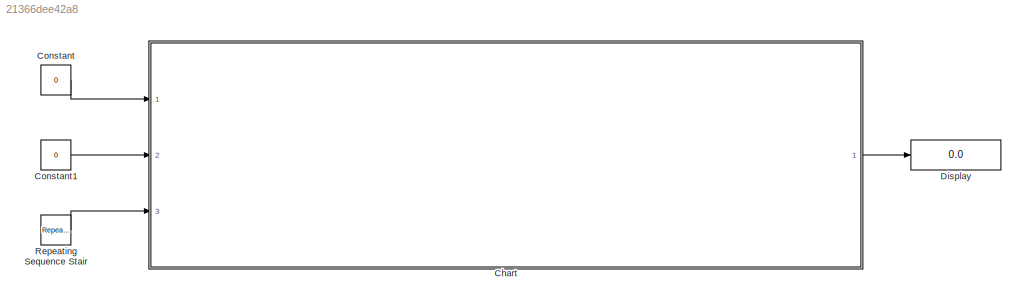
MODEL slx_21366dee42a8
KIND model
CONFIG AbsTol = auto
CONFIG EnableMultiTasking = off
CONFIG FixedStep = 1
CONFIG MaxStep = auto
CONFIG MinStep = auto
CONFIG RelTol = 1e-3
CONFIG SampleTimeConstraint = Unconstrained
CONFIG Solver = FixedStepDiscrete
CONFIG SolverName = FixedStepDiscrete
CONFIG StartTime = 0.0
CONFIG StopTime = 20
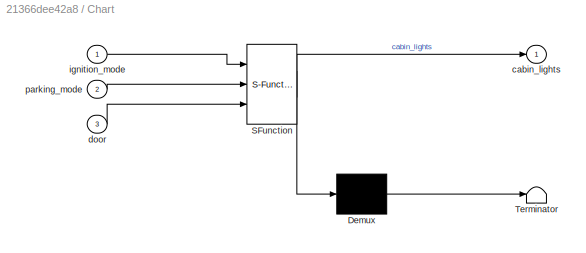
BLOCK [SubSystem] Chart
  BlockKeywords = __PRM__SERIALIZED__DATA__:Stateflow Chart,Stateflow Diagram
  ErrorFcn = Stateflow.Translate.translate
  PermitHierarchicalResolution = ExplicitOnly
  Ports = [3, 1]
  RequestExecContextInheritance = off
  SFBlockType = Chart
  TreatAsAtomicUnit = on
BLOCK [Demux] Chart/ Demux 
  Outputs = 1
  Ports = [1, 1]
BLOCK [S-Function] Chart/ SFunction 
  EnableBusSupport = on
  FunctionName = sf_sfun
  PortCounts = [3 2]
  Ports = [3, 2]
  SFcnIsStateOwnerBlock = off
  SFunctionDeploymentMode = off
  Tag = Stateflow S-Function modellfinal 3
BLOCK [Terminator] Chart/ Terminator 
BLOCK [Outport] Chart/cabin_lights
  IconDisplay = Port number
BLOCK [Inport] Chart/door
  IconDisplay = Port number
  Port = 3
BLOCK [Inport] Chart/ignition_mode
  IconDisplay = Port number
BLOCK [Inport] Chart/parking_mode
  IconDisplay = Port number
  Port = 2
BLOCK [Constant] Constant
  Value = 0
BLOCK [Constant] Constant1
  Value = 0
BLOCK [Display] Display
  Decimation = 1
  Ports = [1]
BLOCK [Reference] Repeating Sequence Stair  REF=simulink/Sources/Repeating
Sequence
Stair
  Ports = [0, 1]
  SourceBlock = simulink/Sources/Repeating\nSequence\nStair
  SourceProductBaseCode = SL
  SourceProductName = Simulink
  SourceType = Repeating Sequence Stair
LINE Chart:1 -> Display:1
LINE Constant1:1 -> Chart:2
LINE Constant:1 -> Chart:1
LINE Repeating Sequence Stair:1 -> Chart:3
CHART Chart states=2 transitions=5
  STATE_LABEL 'end\nen,du:\ncabin_lights=1;\n'
  STATE_LABEL 'start\nen,ex:\ncabin_lights=0;'
